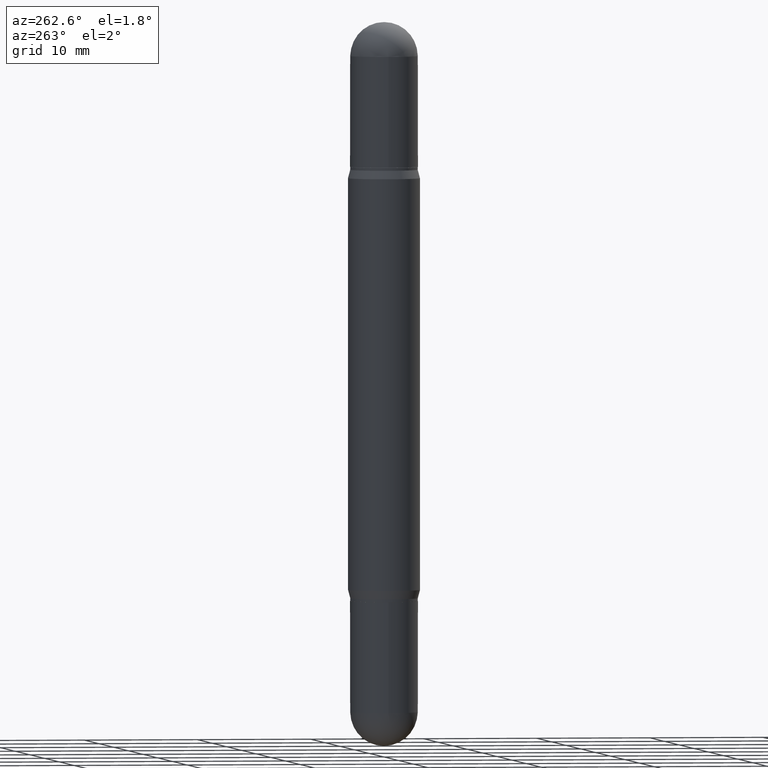
[diagram: clean part render]
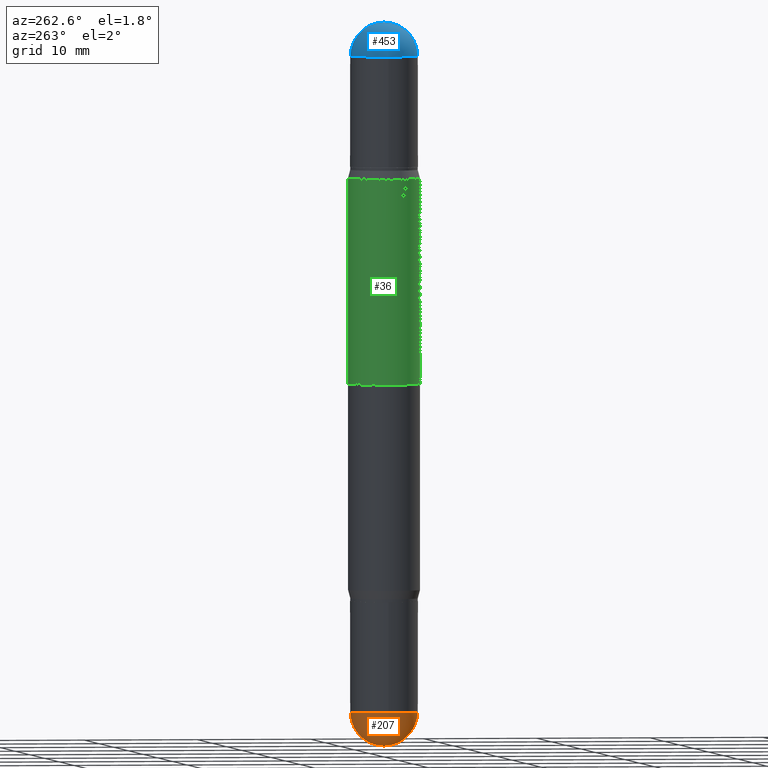
[diagram: same view with three faces highlighted in distinct colors, each labeled with its STEP entity id]
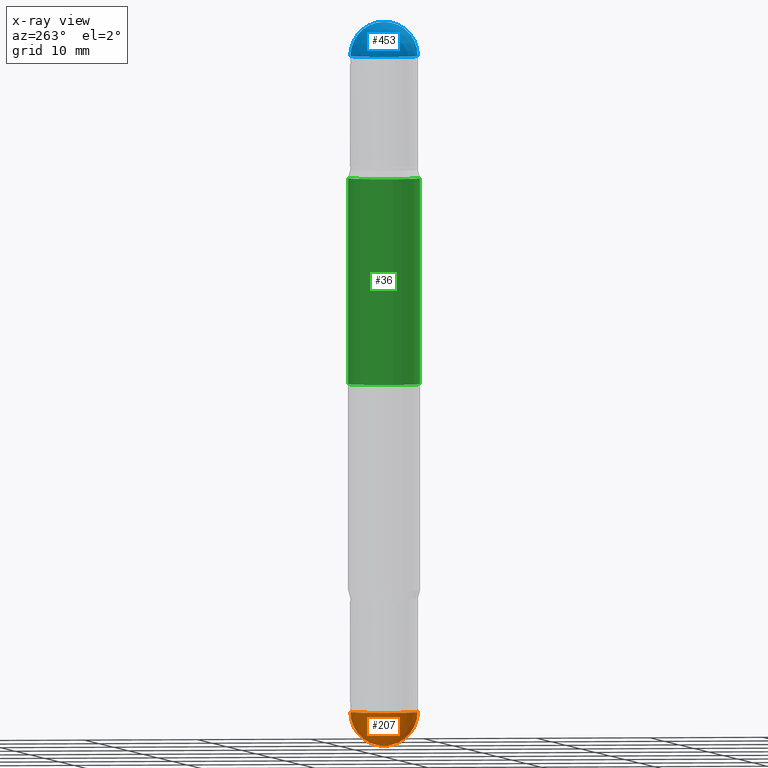
[diagram: x-ray of the same camera — body ghosted, the three highlighted faces saturated]
A machine part, auxiliary view with three faces highlighted in distinct colors.
The next image is the same camera in x-ray (body ghosted, the three faces saturated) — at least one of them is partly hidden behind the body in this view.
Their STEP definitions:

[orange] entity #207 — the highlighted spherical surface has radius 2.9769 mm.
#26 = CARTESIAN_POINT ( 'NONE',  ( 5.817040522468761480E-29, -8.333854594681453512E-15, -2.382800000000000029 ) ) ;
#44 = AXIS2_PLACEMENT_3D ( 'NONE', #26, #464, #369 ) ;
#52 = EDGE_CURVE ( 'NONE', #1115, #318, #463, .T. ) ;
#116 = AXIS2_PLACEMENT_3D ( 'NONE', #888, #728, #307 ) ;
#139 = ORIENTED_EDGE ( 'NONE', *, *, #52, .F. ) ;
#140 = DIRECTION ( 'NONE',  ( -7.105427357601001070E-15, -1.000000000000000000, 0.000000000000000000 ) ) ;
#171 = CIRCLE ( 'NONE', #978, 0.1172000000000000125 ) ;
#207 = ADVANCED_FACE ( 'NONE', ( #892 ), #1087, .T. ) ;
#225 = CARTESIAN_POINT ( 'NONE',  ( -8.327560863107790324E-16, -0.1172000000000083114, -2.382799999999999585 ) ) ;
#272 = DIRECTION ( 'NONE',  ( 1.000000000000000000, -6.982962677686262766E-15, 0.000000000000000000 ) ) ;
#298 = DIRECTION ( 'NONE',  ( 6.982962677686265922E-15, 1.000000000000000000, -2.330928322239132080E-15 ) ) ;
#307 = DIRECTION ( 'NONE',  ( 1.000000000000000000, -6.982962677686262766E-15, 0.000000000000000000 ) ) ;
#311 = EDGE_LOOP ( 'NONE', ( #139, #494, #920, #565 ) ) ;
#318 = VERTEX_POINT ( 'NONE', #390 ) ;
#324 = EDGE_CURVE ( 'NONE', #318, #596, #594, .T. ) ;
#369 = DIRECTION ( 'NONE',  ( 6.982962677686265922E-15, 1.000000000000000000, 0.000000000000000000 ) ) ;
#390 = CARTESIAN_POINT ( 'NONE',  ( 8.184032258248885352E-16, 0.1171999999999916858, -2.382800000000000473 ) ) ;
#452 = DIRECTION ( 'NONE',  ( -2.445468806185136597E-29, 3.491481338843145583E-15, 1.000000000000000000 ) ) ;
#463 = CIRCLE ( 'NONE', #44, 0.1172000000000000125 ) ;
#464 = DIRECTION ( 'NONE',  ( 1.000000000000000000, -6.982962677686265922E-15, 4.883557194083112340E-29 ) ) ;
#494 = ORIENTED_EDGE ( 'NONE', *, *, #765, .T. ) ;
#495 = CIRCLE ( 'NONE', #1052, 0.1171999999999999847 ) ;
#545 = EDGE_CURVE ( 'NONE', #596, #760, #495, .T. ) ;
#560 = CARTESIAN_POINT ( 'NONE',  ( 5.817040522468761480E-29, -8.333854594681453512E-15, -2.382800000000000029 ) ) ;
#562 = DIRECTION ( 'NONE',  ( -1.000000000000000000, 6.982962677686265922E-15, -4.883557194083112340E-29 ) ) ;
#565 = ORIENTED_EDGE ( 'NONE', *, *, #324, .F. ) ;
#594 = CIRCLE ( 'NONE', #116, 0.1171999999999999847 ) ;
#596 = VERTEX_POINT ( 'NONE', #699 ) ;
#699 = CARTESIAN_POINT ( 'NONE',  ( -0.1171999999999999847, -6.818476119630032342E-15, -2.382800000000000029 ) ) ;
#718 = CARTESIAN_POINT ( 'NONE',  ( 5.817040522468761480E-29, -8.333854594681453512E-15, -2.382800000000000029 ) ) ;
#728 = DIRECTION ( 'NONE',  ( -2.445468806185136597E-29, 3.491481338843145583E-15, 1.000000000000000000 ) ) ;
#760 = VERTEX_POINT ( 'NONE', #225 ) ;
#765 = EDGE_CURVE ( 'NONE', #1115, #760, #171, .T. ) ;
#850 = CARTESIAN_POINT ( 'NONE',  ( 6.108660741008250017E-29, -8.735879777350867334E-15, -2.500000000000000000 ) ) ;
#853 = AXIS2_PLACEMENT_3D ( 'NONE', #718, #562, #298 ) ;
#873 = CARTESIAN_POINT ( 'NONE',  ( 5.827063071377943309E-29, -8.319501734195447151E-15, -2.382800000000000029 ) ) ;
#888 = CARTESIAN_POINT ( 'NONE',  ( 5.827063071377943309E-29, -8.319501734195447151E-15, -2.382800000000000029 ) ) ;
#892 = FACE_OUTER_BOUND ( 'NONE', #311, .T. ) ;
#905 = DIRECTION ( 'NONE',  ( -1.000000000000000000, 7.105427357601001070E-15, -4.926315508542082329E-29 ) ) ;
#920 = ORIENTED_EDGE ( 'NONE', *, *, #545, .F. ) ;
#978 = AXIS2_PLACEMENT_3D ( 'NONE', #560, #905, #140 ) ;
#1052 = AXIS2_PLACEMENT_3D ( 'NONE', #873, #452, #272 ) ;
#1087 = SPHERICAL_SURFACE ( 'NONE', #853, 0.1172000000000000125 ) ;
#1115 = VERTEX_POINT ( 'NONE', #850 ) ;

[blue] entity #453 — the highlighted spherical surface has radius 2.9769 mm.
#20 = DIRECTION ( 'NONE',  ( -1.000000000000000000, 6.982962677686265922E-15, 1.566701062080016245E-31 ) ) ;
#28 = AXIS2_PLACEMENT_3D ( 'NONE', #481, #893, #818 ) ;
#76 = CARTESIAN_POINT ( 'NONE',  ( -8.040503653387651269E-16, -0.1172000000000004288, -0.1171999999999996378 ) ) ;
#89 = ORIENTED_EDGE ( 'NONE', *, *, #1059, .T. ) ;
#236 = VERTEX_POINT ( 'NONE', #468 ) ;
#240 = CARTESIAN_POINT ( 'NONE',  ( -0.1171999999999999847, -2.845922490021797953E-16, -0.1172000000000000541 ) ) ;
#281 = CIRCLE ( 'NONE', #28, 0.1171999999999999847 ) ;
#306 = DIRECTION ( 'NONE',  ( 1.000000000000000000, -6.860497997771530774E-15, -5.827999781331232286E-31 ) ) ;
#404 = AXIS2_PLACEMENT_3D ( 'NONE', #626, #306, #887 ) ;
#430 = VERTEX_POINT ( 'NONE', #76 ) ;
#453 = ADVANCED_FACE ( 'NONE', ( #579 ), #916, .T. ) ;
#468 = CARTESIAN_POINT ( 'NONE',  ( 8.184032258248885352E-16, 0.1171999999999995684, -0.1172000000000004566 ) ) ;
#476 = CARTESIAN_POINT ( 'NONE',  ( 5.827063071377943309E-29, -4.226444053614477308E-16, -0.1172000000000000541 ) ) ;
#477 = CIRCLE ( 'NONE', #961, 0.1171999999999999847 ) ;
#481 = CARTESIAN_POINT ( 'NONE',  ( 5.827063071377943309E-29, -4.226444053614477308E-16, -0.1172000000000000541 ) ) ;
#497 = CIRCLE ( 'NONE', #1017, 0.1172000000000000125 ) ;
#504 = VERTEX_POINT ( 'NONE', #520 ) ;
#520 = CARTESIAN_POINT ( 'NONE',  ( 6.108660741008250017E-29, -2.201002007464966888E-17, -3.414809992080329023E-17 ) ) ;
#579 = FACE_OUTER_BOUND ( 'NONE', #829, .T. ) ;
#613 = DIRECTION ( 'NONE',  ( -6.982962677686265922E-15, -1.000000000000000000, 0.000000000000000000 ) ) ;
#614 = AXIS2_PLACEMENT_3D ( 'NONE', #924, #1031, #848 ) ;
#626 = CARTESIAN_POINT ( 'NONE',  ( 5.817040522468761480E-29, -4.369972658474546835E-16, -0.1172000000000000541 ) ) ;
#656 = ORIENTED_EDGE ( 'NONE', *, *, #681, .T. ) ;
#681 = EDGE_CURVE ( 'NONE', #946, #430, #477, .T. ) ;
#683 = EDGE_CURVE ( 'NONE', #504, #430, #1054, .T. ) ;
#785 = CARTESIAN_POINT ( 'NONE',  ( 5.817040522468761480E-29, -4.369972658474546835E-16, -0.1172000000000000541 ) ) ;
#818 = DIRECTION ( 'NONE',  ( 1.000000000000000000, -6.982962677686266711E-15, 0.000000000000000000 ) ) ;
#824 = ORIENTED_EDGE ( 'NONE', *, *, #683, .F. ) ;
#829 = EDGE_LOOP ( 'NONE', ( #824, #1009, #89, #656 ) ) ;
#848 = DIRECTION ( 'NONE',  ( 6.982962677686265922E-15, 1.000000000000000000, -3.496392483358698316E-15 ) ) ;
#851 = EDGE_CURVE ( 'NONE', #504, #236, #497, .T. ) ;
#887 = DIRECTION ( 'NONE',  ( 6.860497997771530774E-15, 1.000000000000000000, 0.000000000000000000 ) ) ;
#893 = DIRECTION ( 'NONE',  ( 2.445468806185136597E-29, 3.479614466977828254E-15, 1.000000000000000000 ) ) ;
#916 = SPHERICAL_SURFACE ( 'NONE', #614, 0.1172000000000000125 ) ;
#924 = CARTESIAN_POINT ( 'NONE',  ( 5.817040522468761480E-29, -4.369972658474546835E-16, -0.1172000000000000541 ) ) ;
#946 = VERTEX_POINT ( 'NONE', #240 ) ;
#961 = AXIS2_PLACEMENT_3D ( 'NONE', #476, #1065, #1068 ) ;
#1009 = ORIENTED_EDGE ( 'NONE', *, *, #851, .T. ) ;
#1017 = AXIS2_PLACEMENT_3D ( 'NONE', #785, #20, #613 ) ;
#1031 = DIRECTION ( 'NONE',  ( 1.000000000000000000, -6.982962677686265922E-15, -1.566701062079984278E-31 ) ) ;
#1054 = CIRCLE ( 'NONE', #404, 0.1172000000000000125 ) ;
#1059 = EDGE_CURVE ( 'NONE', #236, #946, #281, .T. ) ;
#1065 = DIRECTION ( 'NONE',  ( 2.445468806185136597E-29, 3.479614466977828254E-15, 1.000000000000000000 ) ) ;
#1068 = DIRECTION ( 'NONE',  ( 1.000000000000000000, -6.982962677686266711E-15, 0.000000000000000000 ) ) ;

[green] entity #36 — the highlighted cylindrical surface (edge-blend (fillet) strip) has radius 3.175 mm, axis along (-0, -0, -1).
#7 = VECTOR ( 'NONE', #966, 39.37007874015748143 ) ;
#14 = CARTESIAN_POINT ( 'NONE',  ( 3.057038403555445604E-29, -4.364061831214273697E-15, -1.250000000000000000 ) ) ;
#36 = ADVANCED_FACE ( 'NONE', ( #252 ), #1104, .T. ) ;
#45 = ORIENTED_EDGE ( 'NONE', *, *, #802, .T. ) ;
#73 = VERTEX_POINT ( 'NONE', #879 ) ;
#87 = VERTEX_POINT ( 'NONE', #191 ) ;
#96 = AXIS2_PLACEMENT_3D ( 'NONE', #567, #1080, #300 ) ;
#108 = ORIENTED_EDGE ( 'NONE', *, *, #663, .F. ) ;
#159 = ORIENTED_EDGE ( 'NONE', *, *, #186, .F. ) ;
#186 = EDGE_CURVE ( 'NONE', #73, #461, #737, .T. ) ;
#191 = CARTESIAN_POINT ( 'NONE',  ( 8.575622497214892700E-16, 0.1249999999999980987, -0.5391099962990379968 ) ) ;
#239 = CARTESIAN_POINT ( 'NONE',  ( -8.728703347107832402E-16, -0.1250000000000087153, -2.499999999999999556 ) ) ;
#252 = FACE_OUTER_BOUND ( 'NONE', #1029, .T. ) ;
#300 = DIRECTION ( 'NONE',  ( -6.982962677686265922E-15, -1.000000000000000000, 3.278217592397115862E-15 ) ) ;
#330 = CARTESIAN_POINT ( 'NONE',  ( -8.728703347107353169E-16, -0.1250000000000018874, -0.5391099962990372196 ) ) ;
#341 = DIRECTION ( 'NONE',  ( -2.445630722844356315E-29, -3.479846340849554879E-15, -1.000000000000000000 ) ) ;
#415 = CARTESIAN_POINT ( 'NONE',  ( 8.575622497214805925E-16, 0.1249999999999956285, -1.250000000000000666 ) ) ;
#438 = EDGE_CURVE ( 'NONE', #1099, #73, #856, .T. ) ;
#442 = DIRECTION ( 'NONE',  ( -0.000000000000000000, -3.485547902910486918E-15, -1.000000000000000000 ) ) ;
#448 = LINE ( 'NONE', #456, #7 ) ;
#456 = CARTESIAN_POINT ( 'NONE',  ( 8.575622497214413467E-16, 0.1249999999999912847, -2.500000000000000444 ) ) ;
#461 = VERTEX_POINT ( 'NONE', #415 ) ;
#567 = CARTESIAN_POINT ( 'NONE',  ( 4.795612837169457572E-29, -1.890273853088953241E-15, -0.5391099962990375527 ) ) ;
#597 = VECTOR ( 'NONE', #341, 39.37007874015748143 ) ;
#663 = EDGE_CURVE ( 'NONE', #87, #1099, #1070, .T. ) ;
#737 = CIRCLE ( 'NONE', #1057, 0.1250000000000000000 ) ;
#781 = DIRECTION ( 'NONE',  ( 0.000000000000000000, 1.000000000000000000, -4.370956789862821150E-15 ) ) ;
#802 = EDGE_CURVE ( 'NONE', #87, #461, #448, .T. ) ;
#845 = AXIS2_PLACEMENT_3D ( 'NONE', #1028, #1118, #1033 ) ;
#856 = LINE ( 'NONE', #239, #597 ) ;
#879 = CARTESIAN_POINT ( 'NONE',  ( -8.728703347107525732E-16, -0.1250000000000043576, -1.249999999999999556 ) ) ;
#894 = ORIENTED_EDGE ( 'NONE', *, *, #438, .F. ) ;
#966 = DIRECTION ( 'NONE',  ( -2.445630722844356315E-29, -3.479846340849554879E-15, -1.000000000000000000 ) ) ;
#1028 = CARTESIAN_POINT ( 'NONE',  ( 0.000000000000000000, -8.713869757276216901E-15, -2.500000000000000000 ) ) ;
#1029 = EDGE_LOOP ( 'NONE', ( #108, #45, #159, #894 ) ) ;
#1033 = DIRECTION ( 'NONE',  ( -6.982962677686265922E-15, -1.000000000000000000, 4.370956789862821150E-15 ) ) ;
#1057 = AXIS2_PLACEMENT_3D ( 'NONE', #14, #442, #781 ) ;
#1070 = CIRCLE ( 'NONE', #96, 0.1250000000000000000 ) ;
#1080 = DIRECTION ( 'NONE',  ( 2.445630722844356315E-29, 3.479846340849554879E-15, 1.000000000000000000 ) ) ;
#1099 = VERTEX_POINT ( 'NONE', #330 ) ;
#1104 = CYLINDRICAL_SURFACE ( 'NONE', #845, 0.1250000000000000000 ) ;
#1118 = DIRECTION ( 'NONE',  ( -2.445630722844356315E-29, -3.479846340849554879E-15, -1.000000000000000000 ) ) ;